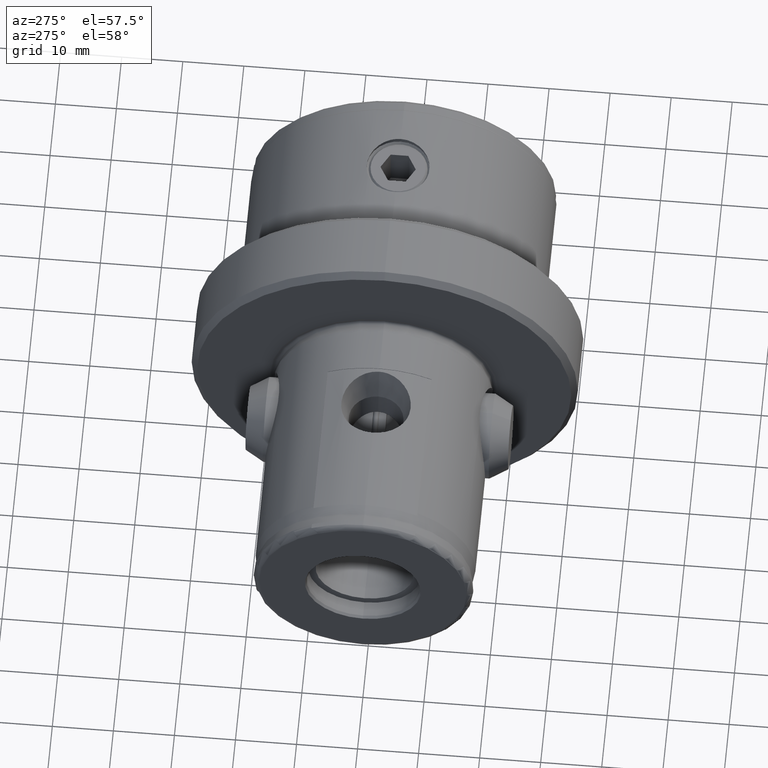
[diagram: clean part render]
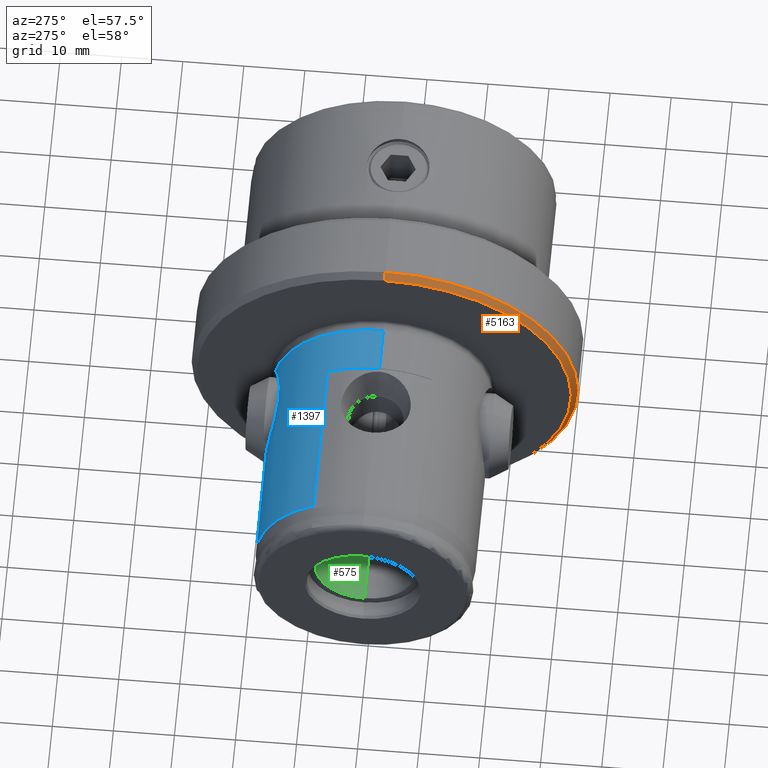
[diagram: same view with three faces highlighted in distinct colors, each labeled with its STEP entity id]
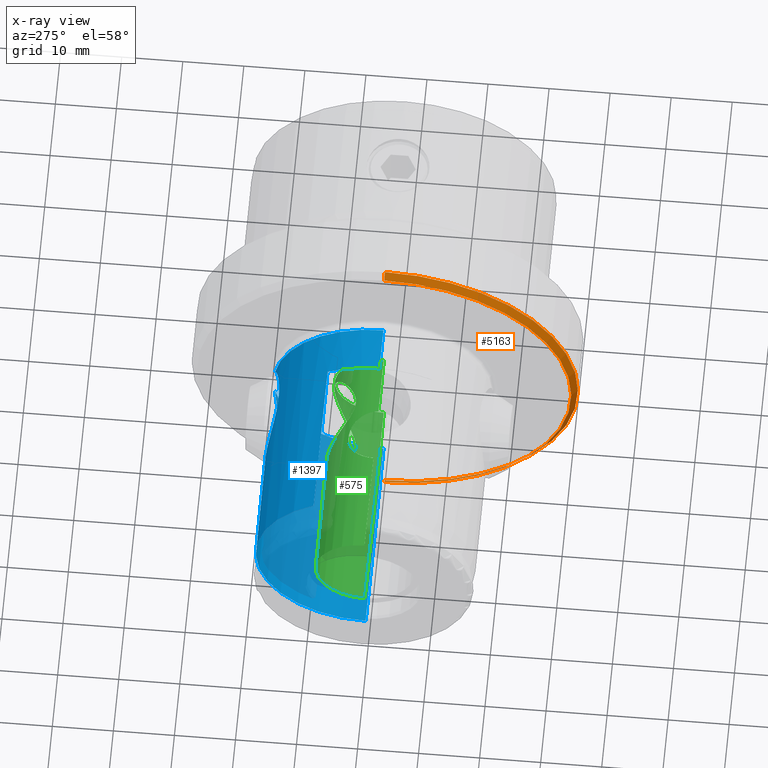
[diagram: x-ray of the same camera — body ghosted, the three highlighted faces saturated]
A machine part, auxiliary view with three faces highlighted in distinct colors.
The next image is the same camera in x-ray (body ghosted, the three faces saturated) — at least one of them is partly hidden behind the body in this view.
Their STEP definitions:

[orange] entity #5163 — the highlighted conical surface has half-angle 45 deg.
#317 = DIRECTION ( 'NONE',  ( 0.7071067811865475700, 0.0000000000000000000, -0.7071067811865474600 ) ) ;
#453 = ORIENTED_EDGE ( 'NONE', *, *, #3436, .F. ) ;
#734 = CONICAL_SURFACE ( 'NONE', #3690, 31.63500000000000500, 0.7853981633974482800 ) ;
#780 = LINE ( 'NONE', #2720, #3036 ) ;
#855 = FACE_OUTER_BOUND ( 'NONE', #3603, .T. ) ;
#1037 = VERTEX_POINT ( 'NONE', #4870 ) ;
#1152 = DIRECTION ( 'NONE',  ( -1.000000000000000000, -0.0000000000000000000, -0.0000000000000000000 ) ) ;
#1500 = AXIS2_PLACEMENT_3D ( 'NONE', #3557, #1152, #3956 ) ;
#1553 = EDGE_CURVE ( 'NONE', #4884, #1037, #3606, .T. ) ;
#1592 = CIRCLE ( 'NONE', #3165, 31.63500000000000500 ) ;
#1745 = DIRECTION ( 'NONE',  ( 0.0000000000000000000, 0.0000000000000000000, -1.000000000000000000 ) ) ;
#1942 = DIRECTION ( 'NONE',  ( -1.000000000000000000, -0.0000000000000000000, -0.0000000000000000000 ) ) ;
#2138 = EDGE_CURVE ( 'NONE', #4884, #2364, #780, .T. ) ;
#2179 = EDGE_CURVE ( 'NONE', #2364, #4627, #1592, .T. ) ;
#2263 = ORIENTED_EDGE ( 'NONE', *, *, #2179, .T. ) ;
#2364 = VERTEX_POINT ( 'NONE', #5006 ) ;
#2608 = CARTESIAN_POINT ( 'NONE',  ( 41.00000000000000000, 3.874170149102652900E-015, 31.63500000000000500 ) ) ;
#2691 = ORIENTED_EDGE ( 'NONE', *, *, #1553, .F. ) ;
#2720 = CARTESIAN_POINT ( 'NONE',  ( 41.00000000000000000, 0.0000000000000000000, -31.63500000000000500 ) ) ;
#2760 = LINE ( 'NONE', #2608, #3850 ) ;
#2947 = CARTESIAN_POINT ( 'NONE',  ( 41.00000000000000000, 0.0000000000000000000, 0.0000000000000000000 ) ) ;
#3036 = VECTOR ( 'NONE', #317, 1000.000000000000000 ) ;
#3152 = CARTESIAN_POINT ( 'NONE',  ( 40.00000000000000000, 0.0000000000000000000, -30.63500000000000200 ) ) ;
#3165 = AXIS2_PLACEMENT_3D ( 'NONE', #4357, #1942, #4795 ) ;
#3417 = DIRECTION ( 'NONE',  ( 0.7071067811865475700, 8.659560562354931600E-017, 0.7071067811865474600 ) ) ;
#3436 = EDGE_CURVE ( 'NONE', #1037, #4627, #2760, .T. ) ;
#3557 = CARTESIAN_POINT ( 'NONE',  ( 40.00000000000000000, 0.0000000000000000000, 0.0000000000000000000 ) ) ;
#3603 = EDGE_LOOP ( 'NONE', ( #453, #2691, #3926, #2263 ) ) ;
#3606 = CIRCLE ( 'NONE', #1500, 30.63500000000000200 ) ;
#3690 = AXIS2_PLACEMENT_3D ( 'NONE', #2947, #4143, #1745 ) ;
#3850 = VECTOR ( 'NONE', #3417, 1000.000000000000000 ) ;
#3926 = ORIENTED_EDGE ( 'NONE', *, *, #2138, .T. ) ;
#3956 = DIRECTION ( 'NONE',  ( 0.0000000000000000000, 0.0000000000000000000, 1.000000000000000000 ) ) ;
#4112 = CARTESIAN_POINT ( 'NONE',  ( 41.00000000000000000, 0.0000000000000000000, 31.63500000000000500 ) ) ;
#4143 = DIRECTION ( 'NONE',  ( 1.000000000000000000, 0.0000000000000000000, 0.0000000000000000000 ) ) ;
#4357 = CARTESIAN_POINT ( 'NONE',  ( 41.00000000000000000, 0.0000000000000000000, 0.0000000000000000000 ) ) ;
#4627 = VERTEX_POINT ( 'NONE', #4112 ) ;
#4795 = DIRECTION ( 'NONE',  ( 0.0000000000000000000, 0.0000000000000000000, 1.000000000000000000 ) ) ;
#4870 = CARTESIAN_POINT ( 'NONE',  ( 40.00000000000000000, 3.812937809145284600E-015, 30.63500000000000200 ) ) ;
#4884 = VERTEX_POINT ( 'NONE', #3152 ) ;
#5006 = CARTESIAN_POINT ( 'NONE',  ( 41.00000000000000000, 3.874170149102652900E-015, -31.63500000000000500 ) ) ;
#5163 = ADVANCED_FACE ( 'NONE', ( #855 ), #734, .T. ) ;

[blue] entity #1397 — the highlighted cylindrical surface (partial cylindrical patch) has radius 18 mm, axis along (-1, -0, -0).
#107 = CARTESIAN_POINT ( 'NONE',  ( 37.99646474748055200, 17.63860882376996000, 3.606855129293381700 ) ) ;
#124 = CARTESIAN_POINT ( 'NONE',  ( 31.73670170766269300, 16.50563471118012500, 7.181082085637370000 ) ) ;
#138 = AXIS2_PLACEMENT_3D ( 'NONE', #4230, #2681, #3027 ) ;
#141 = CARTESIAN_POINT ( 'NONE',  ( 24.34541863625331000, 17.53321062079486100, 4.089163731635486500 ) ) ;
#247 = VERTEX_POINT ( 'NONE', #3738 ) ;
#255 = CARTESIAN_POINT ( 'NONE',  ( 23.55845802897322000, 17.78404422032052400, -2.787362493545952400 ) ) ;
#260 = ORIENTED_EDGE ( 'NONE', *, *, #3874, .T. ) ;
#271 = CARTESIAN_POINT ( 'NONE',  ( 29.11575502398848100, 16.57827458412401000, -7.011903959323706900 ) ) ;
#291 = CARTESIAN_POINT ( 'NONE',  ( 35.49434043996613000, 16.97779143842763700, -5.980604082472052800 ) ) ;
#293 = VECTOR ( 'NONE', #3391, 1000.000000000000000 ) ;
#426 = DIRECTION ( 'NONE',  ( -1.000000000000000000, -0.0000000000000000000, -0.0000000000000000000 ) ) ;
#450 = DIRECTION ( 'NONE',  ( -1.000000000000000000, -0.0000000000000000000, -0.0000000000000000000 ) ) ;
#467 = EDGE_CURVE ( 'NONE', #2981, #247, #4712, .T. ) ;
#509 = CARTESIAN_POINT ( 'NONE',  ( 37.18306621504534300, 17.39441197991005300, 4.640149856457091100 ) ) ;
#531 = CARTESIAN_POINT ( 'NONE',  ( 30.40898110822280400, 16.50078830626885900, 7.191943260475200700 ) ) ;
#554 = CARTESIAN_POINT ( 'NONE',  ( 23.86494661084117700, 17.68381765283066500, 3.364656110074328000 ) ) ;
#645 = VERTEX_POINT ( 'NONE', #1727 ) ;
#668 = CARTESIAN_POINT ( 'NONE',  ( 23.86842660269960000, 17.68269974206002400, -3.370540670704040400 ) ) ;
#686 = CARTESIAN_POINT ( 'NONE',  ( 30.43455029711807200, 16.50009753239773900, -7.193526586947546900 ) ) ;
#697 = CARTESIAN_POINT ( 'NONE',  ( 36.22501593775069800, 17.14163620460445300, -5.498251275227708000 ) ) ;
#706 = CARTESIAN_POINT ( 'NONE',  ( 31.00000000000000000, 0.0000000000000000000, 0.0000000000000000000 ) ) ;
#732 = VECTOR ( 'NONE', #426, 1000.000000000000000 ) ;
#747 = CARTESIAN_POINT ( 'NONE',  ( 31.00000000000000000, 8.500000000000001800, 15.86663165262242400 ) ) ;
#769 = EDGE_CURVE ( 'NONE', #4776, #2565, #4644, .T. ) ;
#870 = DIRECTION ( 'NONE',  ( -1.000000000000000000, -0.0000000000000000000, -0.0000000000000000000 ) ) ;
#922 = CARTESIAN_POINT ( 'NONE',  ( 36.21141091913104800, 17.13830921320812500, 5.508610082120564600 ) ) ;
#937 = CARTESIAN_POINT ( 'NONE',  ( 29.09134896299174100, 16.58051310533916100, 7.006623401730663200 ) ) ;
#957 = CARTESIAN_POINT ( 'NONE',  ( 23.55458967925925500, 17.78533201208745100, 2.779154847720370900 ) ) ;
#1048 = FACE_OUTER_BOUND ( 'NONE', #2708, .T. ) ;
#1058 = CARTESIAN_POINT ( 'NONE',  ( 22.93190200199919500, 17.99999999999998900, -0.4442097121161643900 ) ) ;
#1071 = CARTESIAN_POINT ( 'NONE',  ( 24.35650833749220100, 17.52982895310218200, -4.103990358311621700 ) ) ;
#1084 = CIRCLE ( 'NONE', #2671, 17.99999999999999600 ) ;
#1085 = CARTESIAN_POINT ( 'NONE',  ( 31.75936099716420500, 16.50645626538545600, -7.179204234457063000 ) ) ;
#1100 = CARTESIAN_POINT ( 'NONE',  ( 37.18956424906622300, 17.39628433779718700, -4.633026610527011300 ) ) ;
#1116 = DIRECTION ( 'NONE',  ( 0.0000000000000000000, 0.0000000000000000000, -1.000000000000000000 ) ) ;
#1320 = CARTESIAN_POINT ( 'NONE',  ( 35.09994271429703600, 16.89526614417736600, 6.211949303041297600 ) ) ;
#1339 = CARTESIAN_POINT ( 'NONE',  ( 27.82837615247086700, 16.73465567413484900, 6.631197576125881500 ) ) ;
#1360 = CARTESIAN_POINT ( 'NONE',  ( 23.16053221535248600, 17.91940058224394500, 1.755418095963167300 ) ) ;
#1364 = LINE ( 'NONE', #2579, #293 ) ;
#1397 = ADVANCED_FACE ( 'NONE', ( #1048 ), #3284, .T. ) ;
#1475 = CARTESIAN_POINT ( 'NONE',  ( 25.24655750495666600, 17.27678132775169600, -5.061293725643069200 ) ) ;
#1493 = CARTESIAN_POINT ( 'NONE',  ( 32.63231668030569900, 16.56034365531662500, -7.053898310445703100 ) ) ;
#1507 = CARTESIAN_POINT ( 'NONE',  ( 38.00119512299937000, 17.64009293534651600, -3.599777068804775200 ) ) ;
#1590 = ORIENTED_EDGE ( 'NONE', *, *, #4512, .F. ) ;
#1663 = AXIS2_PLACEMENT_3D ( 'NONE', #706, #3509, #1116 ) ;
#1727 = CARTESIAN_POINT ( 'NONE',  ( 31.00000000000000000, 0.0000000000000000000, 17.99999999999999600 ) ) ;
#1729 = CARTESIAN_POINT ( 'NONE',  ( 33.89734758831384200, 16.69476340113109500, 6.730705771259678700 ) ) ;
#1749 = CARTESIAN_POINT ( 'NONE',  ( 26.63762583643104200, 16.94773195362926200, 6.067828240129368400 ) ) ;
#1765 = CARTESIAN_POINT ( 'NONE',  ( 22.99013818440916200, 17.97931556761555100, 0.8908833420161134100 ) ) ;
#1797 = CARTESIAN_POINT ( 'NONE',  ( 38.41455850893560600, 0.0000000000000000000, 0.0000000000000000000 ) ) ;
#1805 = LINE ( 'NONE', #2006, #732 ) ;
#1857 = CARTESIAN_POINT ( 'NONE',  ( 22.97769097315834600, 17.98358038333631000, -0.8840669560141553000 ) ) ;
#1874 = CARTESIAN_POINT ( 'NONE',  ( 26.28859359313112900, 17.02274508933090800, -5.856424216264334100 ) ) ;
#1886 = CARTESIAN_POINT ( 'NONE',  ( 33.28246580513797400, 16.62165037414337100, -6.908340353321326800 ) ) ;
#1900 = CARTESIAN_POINT ( 'NONE',  ( 38.41455850893560600, 17.77522644697580400, -2.835722969320480000 ) ) ;
#2006 = CARTESIAN_POINT ( 'NONE',  ( 0.0000000000000000000, 8.500000000000001800, 15.86663165262242400 ) ) ;
#2112 = CARTESIAN_POINT ( 'NONE',  ( 33.04300684568005400, 16.59669515726684400, 6.967933976370146000 ) ) ;
#2129 = CARTESIAN_POINT ( 'NONE',  ( 25.56355220360657300, 17.19411628802263800, 5.332386843050134200 ) ) ;
#2150 = CARTESIAN_POINT ( 'NONE',  ( 22.93190200199919500, 17.99999999999999300, 0.2219730551926340800 ) ) ;
#2167 = ORIENTED_EDGE ( 'NONE', *, *, #2810, .F. ) ;
#2176 = CARTESIAN_POINT ( 'NONE',  ( 38.41455850893560600, 0.0000000000000000000, 0.0000000000000000000 ) ) ;
#2188 = DIRECTION ( 'NONE',  ( 0.0000000000000000000, 0.0000000000000000000, 1.000000000000000000 ) ) ;
#2228 = ORIENTED_EDGE ( 'NONE', *, *, #3469, .T. ) ;
#2244 = CARTESIAN_POINT ( 'NONE',  ( 23.17186351799894700, 17.91553109237514000, -1.754680315417129300 ) ) ;
#2260 = CARTESIAN_POINT ( 'NONE',  ( 27.44232305104138100, 16.79707083821646000, -6.473190740486644200 ) ) ;
#2276 = CARTESIAN_POINT ( 'NONE',  ( 34.32638708030926700, 16.75911846020310500, -6.570429767877737200 ) ) ;
#2496 = CARTESIAN_POINT ( 'NONE',  ( 38.22325769522573300, 17.71178676538877300, 3.233383360738678400 ) ) ;
#2517 = CARTESIAN_POINT ( 'NONE',  ( 32.39199808531108700, 16.54278849941125200, 7.094866309426890900 ) ) ;
#2526 = ORIENTED_EDGE ( 'NONE', *, *, #769, .T. ) ;
#2539 = VECTOR ( 'NONE', #870, 1000.000000000000000 ) ;
#2541 = CARTESIAN_POINT ( 'NONE',  ( 24.62010505910683000, 17.45106249884142000, 4.423131486813447900 ) ) ;
#2565 = VERTEX_POINT ( 'NONE', #4747 ) ;
#2575 = DIRECTION ( 'NONE',  ( 0.0000000000000000000, 0.0000000000000000000, 1.000000000000000000 ) ) ;
#2579 = CARTESIAN_POINT ( 'NONE',  ( 0.0000000000000000000, 0.0000000000000000000, 17.99999999999999600 ) ) ;
#2613 = VERTEX_POINT ( 'NONE', #747 ) ;
#2659 = CARTESIAN_POINT ( 'NONE',  ( 23.38401876159309400, 17.84265000916357000, -2.383581161034348900 ) ) ;
#2671 = AXIS2_PLACEMENT_3D ( 'NONE', #2176, #5026, #2575 ) ;
#2676 = CARTESIAN_POINT ( 'NONE',  ( 28.68931508895390800, 16.62172541123075200, -6.909358408355208400 ) ) ;
#2681 = DIRECTION ( 'NONE',  ( -1.000000000000000000, -0.0000000000000000000, -0.0000000000000000000 ) ) ;
#2689 = CARTESIAN_POINT ( 'NONE',  ( 35.11323967572234700, 16.90058372384155700, -6.195425498821697000 ) ) ;
#2708 = EDGE_LOOP ( 'NONE', ( #2738, #3161, #2167, #1590, #260, #4780, #2526, #3497, #2228 ) ) ;
#2730 = VERTEX_POINT ( 'NONE', #4421 ) ;
#2738 = ORIENTED_EDGE ( 'NONE', *, *, #3694, .T. ) ;
#2810 = EDGE_CURVE ( 'NONE', #5131, #247, #4943, .T. ) ;
#2850 = CARTESIAN_POINT ( 'NONE',  ( 5.000000000000000000, 0.0000000000000000000, 0.0000000000000000000 ) ) ;
#2915 = CARTESIAN_POINT ( 'NONE',  ( 37.47707335714002100, 17.48007102607759600, 4.310109289213925400 ) ) ;
#2928 = CARTESIAN_POINT ( 'NONE',  ( 0.0000000000000000000, 2.204364238465235000E-015, -17.99999999999999600 ) ) ;
#2937 = CARTESIAN_POINT ( 'NONE',  ( 31.29644119268686700, 16.49445989731545500, 7.206445398811125000 ) ) ;
#2952 = CARTESIAN_POINT ( 'NONE',  ( 23.97929142787597500, 17.64730792314463400, 3.550522037677807500 ) ) ;
#2981 = VERTEX_POINT ( 'NONE', #3736 ) ;
#3022 = CIRCLE ( 'NONE', #1663, 17.99999999999999600 ) ;
#3027 = DIRECTION ( 'NONE',  ( 0.0000000000000000000, 0.0000000000000000000, 1.000000000000000000 ) ) ;
#3061 = CARTESIAN_POINT ( 'NONE',  ( 23.65540555508770400, 17.75190002092530900, -2.984704378626416700 ) ) ;
#3073 = CARTESIAN_POINT ( 'NONE',  ( 29.98658153610719900, 16.51738820525706300, -7.154150697198582000 ) ) ;
#3090 = CARTESIAN_POINT ( 'NONE',  ( 35.68202834501068600, 17.01826837074836600, -5.864738389333546700 ) ) ;
#3161 = ORIENTED_EDGE ( 'NONE', *, *, #467, .T. ) ;
#3234 = AXIS2_PLACEMENT_3D ( 'NONE', #2850, #450, #3254 ) ;
#3254 = DIRECTION ( 'NONE',  ( 0.0000000000000000000, 0.0000000000000000000, 1.000000000000000000 ) ) ;
#3284 = CYLINDRICAL_SURFACE ( 'NONE', #138, 17.99999999999999600 ) ;
#3311 = CARTESIAN_POINT ( 'NONE',  ( 36.55129623075387000, 17.22388653117948800, 5.237775441756848900 ) ) ;
#3331 = CARTESIAN_POINT ( 'NONE',  ( 29.96136775513525000, 16.51864850772420500, 7.151254282170668800 ) ) ;
#3349 = CARTESIAN_POINT ( 'NONE',  ( 23.65265180328631800, 17.75280752788188500, 2.979285551202866900 ) ) ;
#3391 = DIRECTION ( 'NONE',  ( -1.000000000000000000, -0.0000000000000000000, -0.0000000000000000000 ) ) ;
#3467 = CARTESIAN_POINT ( 'NONE',  ( 23.98500906537170600, 17.64549065747029400, -3.559644568445278000 ) ) ;
#3469 = EDGE_CURVE ( 'NONE', #2730, #4219, #3514, .T. ) ;
#3483 = CARTESIAN_POINT ( 'NONE',  ( 31.31967915464217700, 16.49483146206961200, -7.205593547632094700 ) ) ;
#3497 = ORIENTED_EDGE ( 'NONE', *, *, #3667, .T. ) ;
#3500 = CARTESIAN_POINT ( 'NONE',  ( 36.56274029073384900, 17.22686039147078000, -5.227898754577625900 ) ) ;
#3509 = DIRECTION ( 'NONE',  ( 1.000000000000000000, 0.0000000000000000000, 0.0000000000000000000 ) ) ;
#3514 = B_SPLINE_CURVE_WITH_KNOTS ( 'NONE', 3,
 ( #3860, #1058, #1857, #4683, #2244, #5108, #2659, #255, #3061, #668, #3467, #1071, #3877, #1475, #4276, #1874, #4701, #2260, #5119, #2676, #271, #3073, #686, #3483, #1085, #3891, #1493, #4292, #1886, #4723, #2276, #5132, #2689, #291, #3090, #697, #3500, #1100, #3904, #1507, #4307, #1900 ),
 .UNSPECIFIED., .F., .F.,
 ( 4, 2, 2, 2, 2, 2, 2, 2, 2, 2, 2, 2, 2, 2, 2, 2, 2, 2, 2, 2, 4 ),
 ( 0.04231837611106453700, 0.04364345451560890800, 0.04430599371788109000, 0.04496853292015327200, 0.04563107212242545300, 0.04629361132469764200, 0.04761868972924200600, 0.04894376813378637600, 0.05026884653833074000, 0.05159392494287511100, 0.05291900334741947400, 0.05424408175196383800, 0.05556916015650819500, 0.05623169935878038300, 0.05689423856105257900, 0.05821931696559695700, 0.05888185616786913900, 0.05954439537014132700, 0.06086947377468571900, 0.06219455217923010300, 0.06351963058377449500 ),
 .UNSPECIFIED. ) ;
#3667 = EDGE_CURVE ( 'NONE', #2565, #2730, #4065, .T. ) ;
#3694 = EDGE_CURVE ( 'NONE', #4219, #2981, #1084, .T. ) ;
#3721 = CARTESIAN_POINT ( 'NONE',  ( 35.48418382912816300, 16.97356370694042800, 5.997046173810051800 ) ) ;
#3727 = CARTESIAN_POINT ( 'NONE',  ( 38.41455850893560600, 17.77522644697580400, -2.835722969320480000 ) ) ;
#3734 = CARTESIAN_POINT ( 'NONE',  ( 5.000000000000000000, 8.500000000000001800, 15.86663165262242400 ) ) ;
#3736 = CARTESIAN_POINT ( 'NONE',  ( 38.41455850893560600, 2.204364238465235000E-015, -17.99999999999999600 ) ) ;
#3738 = CARTESIAN_POINT ( 'NONE',  ( 5.000000000000000000, 2.204364238465235000E-015, -17.99999999999999600 ) ) ;
#3745 = CARTESIAN_POINT ( 'NONE',  ( 28.66477119139607800, 16.62445352552378000, 6.902827449905713000 ) ) ;
#3761 = CARTESIAN_POINT ( 'NONE',  ( 23.29353052584658500, 17.87307550028492300, 2.172583244038402700 ) ) ;
#3860 = CARTESIAN_POINT ( 'NONE',  ( 22.93190200199920200, 17.99999999999999600, -3.871334892372115400E-025 ) ) ;
#3874 = EDGE_CURVE ( 'NONE', #2613, #645, #3022, .T. ) ;
#3877 = CARTESIAN_POINT ( 'NONE',  ( 24.63436073430891300, 17.44689145738176400, -4.439577198171324600 ) ) ;
#3891 = CARTESIAN_POINT ( 'NONE',  ( 32.41461366777974000, 16.54432081348344900, -7.091295141990646500 ) ) ;
#3904 = CARTESIAN_POINT ( 'NONE',  ( 37.48006713832752700, 17.48094520961730700, -4.306718970528768500 ) ) ;
#4065 = B_SPLINE_CURVE_WITH_KNOTS ( 'NONE', 3,
 ( #4945, #2496, #107, #2915, #509, #3311, #922, #3721, #1320, #4135, #1729, #4535, #2112, #4967, #2517, #124, #2937, #531, #3331, #937, #3745, #1339, #4149, #1749, #4560, #2129, #4985, #2541, #141, #2952, #554, #3349, #957, #3761, #1360, #4166, #1765, #4583, #2150, #5005 ),
 .UNSPECIFIED., .F., .F.,
 ( 4, 2, 2, 2, 2, 2, 2, 2, 2, 2, 2, 2, 2, 2, 2, 2, 2, 2, 2, 4 ),
 ( 0.02112970282967841000, 0.02245399490976504300, 0.02377828698985167500, 0.02510257906993831200, 0.02642687115002494500, 0.02775116323011157800, 0.02841330927015489600, 0.02907545531019821100, 0.03039974739028484400, 0.03172403947037148000, 0.03304833155045811000, 0.03437262363054474600, 0.03569691571063138300, 0.03702120779071801200, 0.03834549987080464200, 0.03900764591084796000, 0.03966979195089127800, 0.04099408403097791500, 0.04165623007102122600, 0.04231837611106453700 ),
 .UNSPECIFIED. ) ;
#4135 = CARTESIAN_POINT ( 'NONE',  ( 34.30770989249216300, 16.75615000173566600, 6.577976082768544500 ) ) ;
#4149 = CARTESIAN_POINT ( 'NONE',  ( 27.41661514601358400, 16.80145667017276200, 6.461827271297570600 ) ) ;
#4166 = CARTESIAN_POINT ( 'NONE',  ( 23.02472694820993100, 17.96706735049164300, 1.109546440009177200 ) ) ;
#4219 = VERTEX_POINT ( 'NONE', #3727 ) ;
#4230 = CARTESIAN_POINT ( 'NONE',  ( 0.0000000000000000000, 0.0000000000000000000, 0.0000000000000000000 ) ) ;
#4276 = CARTESIAN_POINT ( 'NONE',  ( 25.58281051922636000, 17.18925380789051300, -5.348000421195600000 ) ) ;
#4292 = CARTESIAN_POINT ( 'NONE',  ( 33.06626629754461500, 16.59899160917127900, -6.962466582681459600 ) ) ;
#4304 = EDGE_CURVE ( 'NONE', #4776, #645, #1364, .T. ) ;
#4307 = CARTESIAN_POINT ( 'NONE',  ( 38.22606379371786300, 17.71271733118926800, -3.227550274077396700 ) ) ;
#4421 = CARTESIAN_POINT ( 'NONE',  ( 22.93190200199920200, 17.99999999999999600, -3.871334892372115400E-025 ) ) ;
#4512 = EDGE_CURVE ( 'NONE', #2613, #5131, #1805, .T. ) ;
#4535 = CARTESIAN_POINT ( 'NONE',  ( 33.25972824885349200, 16.61916049909768500, 6.914324667310957300 ) ) ;
#4560 = CARTESIAN_POINT ( 'NONE',  ( 26.26695388476233700, 17.02754932183958700, 5.842477938537720100 ) ) ;
#4583 = CARTESIAN_POINT ( 'NONE',  ( 22.94356862908022200, 17.99583828762101600, 0.4463919071600912500 ) ) ;
#4620 = DIRECTION ( 'NONE',  ( -1.000000000000000000, -0.0000000000000000000, -0.0000000000000000000 ) ) ;
#4644 = CIRCLE ( 'NONE', #4774, 17.99999999999999600 ) ;
#4683 = CARTESIAN_POINT ( 'NONE',  ( 23.11450770583963900, 17.93555306454750200, -1.537407140434435200 ) ) ;
#4701 = CARTESIAN_POINT ( 'NONE',  ( 26.66053469898521300, 16.94301535979870400, -6.080955321691590100 ) ) ;
#4712 = LINE ( 'NONE', #2928, #2539 ) ;
#4723 = CARTESIAN_POINT ( 'NONE',  ( 33.91735542046166100, 16.69758163014083200, -6.723725016323570000 ) ) ;
#4747 = CARTESIAN_POINT ( 'NONE',  ( 38.41455850893566300, 17.77522644697582200, 2.835722969320359200 ) ) ;
#4774 = AXIS2_PLACEMENT_3D ( 'NONE', #1797, #4620, #2188 ) ;
#4776 = VERTEX_POINT ( 'NONE', #5078 ) ;
#4780 = ORIENTED_EDGE ( 'NONE', *, *, #4304, .F. ) ;
#4943 = CIRCLE ( 'NONE', #3234, 17.99999999999999600 ) ;
#4945 = CARTESIAN_POINT ( 'NONE',  ( 38.41455850893566300, 17.77522644697582200, 2.835722969320359200 ) ) ;
#4967 = CARTESIAN_POINT ( 'NONE',  ( 32.60957766427833300, 16.55856864973131700, 7.058059103920378200 ) ) ;
#4985 = CARTESIAN_POINT ( 'NONE',  ( 25.22811866797911400, 17.28170604738808100, 5.044433623290114400 ) ) ;
#5005 = CARTESIAN_POINT ( 'NONE',  ( 22.93190200199920200, 17.99999999999999600, -3.871334892372115400E-025 ) ) ;
#5026 = DIRECTION ( 'NONE',  ( -1.000000000000000000, -0.0000000000000000000, -0.0000000000000000000 ) ) ;
#5078 = CARTESIAN_POINT ( 'NONE',  ( 38.41455850893560600, 0.0000000000000000000, 17.99999999999999600 ) ) ;
#5108 = CARTESIAN_POINT ( 'NONE',  ( 23.30652457802580500, 17.86911317836021200, -2.177142978797158800 ) ) ;
#5119 = CARTESIAN_POINT ( 'NONE',  ( 27.85411953193403200, 16.73078757115319000, -6.640913830973035600 ) ) ;
#5131 = VERTEX_POINT ( 'NONE', #3734 ) ;
#5132 = CARTESIAN_POINT ( 'NONE',  ( 34.91913907800201900, 16.86368335530488200, -6.294905354049918200 ) ) ;

[green] entity #575 — the highlighted cylindrical surface (partial cylindrical patch) has radius 8 mm, axis along (-1, -0, -0).
#13 = CARTESIAN_POINT ( 'NONE',  ( 27.48251403914352800, 5.225842342489489300, -6.067100569784237500 ) ) ;
#17 = AXIS2_PLACEMENT_3D ( 'NONE', #3778, #1382, #4191 ) ;
#23 = CARTESIAN_POINT ( 'NONE',  ( 23.89654528496663500, 4.469307143233852000, 6.635536900519606500 ) ) ;
#31 = CARTESIAN_POINT ( 'NONE',  ( 24.27183329226399900, 7.763170223860410800, -1.946708591556181700 ) ) ;
#47 = CARTESIAN_POINT ( 'NONE',  ( 25.01472903792675200, 7.127611959860361800, 3.657263872402699300 ) ) ;
#57 = CARTESIAN_POINT ( 'NONE',  ( 29.77802741755636600, 4.055457364967495000, 6.896534306439681600 ) ) ;
#70 = EDGE_CURVE ( 'NONE', #3978, #4957, #1718, .T. ) ;
#106 = CARTESIAN_POINT ( 'NONE',  ( 21.75218630588040400, 3.575326788833689000, 7.158923600411578800 ) ) ;
#114 = CARTESIAN_POINT ( 'NONE',  ( 31.00000000000000000, 3.872983346207416100, -7.000000000000000000 ) ) ;
#202 = CARTESIAN_POINT ( 'NONE',  ( 31.98074286846648600, 3.988177731900007600, 6.935210667922923700 ) ) ;
#220 = CARTESIAN_POINT ( 'NONE',  ( 36.59568461713911300, 6.804890004860987500, 4.211636175206130000 ) ) ;
#239 = CARTESIAN_POINT ( 'NONE',  ( 37.79487699569075700, 7.821107749879473700, -1.699694806297963100 ) ) ;
#315 = CARTESIAN_POINT ( 'NONE',  ( 33.33639898924870700, 4.519184882075790300, -6.602452310275883600 ) ) ;
#334 = CARTESIAN_POINT ( 'NONE',  ( 20.00000000000000000, 2.429691588080716400E-024, 8.000000000000000000 ) ) ;
#348 = ORIENTED_EDGE ( 'NONE', *, *, #3221, .T. ) ;
#415 = CARTESIAN_POINT ( 'NONE',  ( 26.77525854670176400, 5.730294773337266900, -5.585463241233657800 ) ) ;
#432 = CARTESIAN_POINT ( 'NONE',  ( 24.05466032900178800, 7.952056936992423900, -0.9989638608996127500 ) ) ;
#440 = AXIS2_PLACEMENT_3D ( 'NONE', #816, #3213, #799 ) ;
#445 = EDGE_CURVE ( 'NONE', #1780, #3668, #4840, .T. ) ;
#448 = CARTESIAN_POINT ( 'NONE',  ( 25.81104634559652700, 6.472103622738505800, 4.718209453474957900 ) ) ;
#465 = CARTESIAN_POINT ( 'NONE',  ( 30.50233205902818400, 3.897572823664293500, 6.986533793702784000 ) ) ;
#526 = ORIENTED_EDGE ( 'NONE', *, *, #4726, .T. ) ;
#540 = EDGE_CURVE ( 'NONE', #1780, #4957, #2405, .T. ) ;
#551 = CARTESIAN_POINT ( 'NONE',  ( 3.000000000000001300, 9.797174393178825700E-016, -8.000000000000000000 ) ) ;
#575 = ADVANCED_FACE ( 'NONE', ( #3617, #2284 ), #1107, .F. ) ;
#612 = CARTESIAN_POINT ( 'NONE',  ( 32.91208899918225200, 4.297563524002335100, 6.750313967821280200 ) ) ;
#630 = CARTESIAN_POINT ( 'NONE',  ( 37.20765299464397200, 7.316088610786460200, 3.269170524971754000 ) ) ;
#644 = CARTESIAN_POINT ( 'NONE',  ( 37.58410927264451800, 7.638658865278716600, -2.388937611990054900 ) ) ;
#708 = CARTESIAN_POINT ( 'NONE',  ( 28.75628956257054700, 1.468402972155198300, 7.865408154721382800 ) ) ;
#730 = CARTESIAN_POINT ( 'NONE',  ( 32.68058799732991600, 4.216402275134134600, -6.799325192123256500 ) ) ;
#777 = VERTEX_POINT ( 'NONE', #551 ) ;
#799 = DIRECTION ( 'NONE',  ( 0.0000000000000000000, 0.0000000000000000000, 1.000000000000000000 ) ) ;
#804 = CARTESIAN_POINT ( 'NONE',  ( 30.75341472122459100, 3.872983346207417500, -7.000000000000002700 ) ) ;
#816 = CARTESIAN_POINT ( 'NONE',  ( 0.0000000000000000000, 0.0000000000000000000, 0.0000000000000000000 ) ) ;
#818 = CARTESIAN_POINT ( 'NONE',  ( 26.28152545996070400, 6.103671481951041100, -5.175140377973498600 ) ) ;
#834 = CARTESIAN_POINT ( 'NONE',  ( 23.99956464490028600, 8.000380935567907400, 0.2374143082818973300 ) ) ;
#854 = CARTESIAN_POINT ( 'NONE',  ( 26.43810958514765400, 5.983197743966739400, 5.313678933897081800 ) ) ;
#869 = CARTESIAN_POINT ( 'NONE',  ( 31.00000000000003200, 3.872983346207529800, 7.000000000000008000 ) ) ;
#900 = CARTESIAN_POINT ( 'NONE',  ( 20.14945777583613700, 1.188220059690629800, 7.916740125071215500 ) ) ;
#913 = EDGE_CURVE ( 'NONE', #3978, #3050, #4254, .T. ) ;
#964 = CARTESIAN_POINT ( 'NONE',  ( 26.51566801564634100, 4.033976322190243400, 6.909754555862320100 ) ) ;
#997 = EDGE_LOOP ( 'NONE', ( #2548, #348 ) ) ;
#1020 = CARTESIAN_POINT ( 'NONE',  ( 33.94127865411982700, 4.860453165376526400, 6.355857183588671700 ) ) ;
#1039 = CARTESIAN_POINT ( 'NONE',  ( 37.73937749234769300, 7.772813829932157000, 1.954234886555770200 ) ) ;
#1070 = CARTESIAN_POINT ( 'NONE',  ( 24.19666770055462700, 4.500035140832922700, 6.614354370086196900 ) ) ;
#1107 = CYLINDRICAL_SURFACE ( 'NONE', #440, 8.000000000000000000 ) ;
#1119 = CARTESIAN_POINT ( 'NONE',  ( 28.88079942607054600, 1.039559419402966000, 7.933523824993356400 ) ) ;
#1121 = CARTESIAN_POINT ( 'NONE',  ( 37.21333961301603200, 7.320924164744736700, -3.258114922168186700 ) ) ;
#1133 = CARTESIAN_POINT ( 'NONE',  ( 31.98474249579057700, 3.988991554300620000, -6.934747940482937500 ) ) ;
#1219 = CARTESIAN_POINT ( 'NONE',  ( 25.53525059416265500, 6.696459006977326200, -4.397427045972274400 ) ) ;
#1229 = ORIENTED_EDGE ( 'NONE', *, *, #445, .F. ) ;
#1238 = CARTESIAN_POINT ( 'NONE',  ( 24.06404719125110600, 7.944009374381276500, 0.9763053732221769200 ) ) ;
#1253 = CARTESIAN_POINT ( 'NONE',  ( 26.94395453693564600, 5.606767190425699700, 5.709096391447112700 ) ) ;
#1283 = CARTESIAN_POINT ( 'NONE',  ( 20.23920598036967200, 1.477341456959619900, 7.867333830361594100 ) ) ;
#1332 = CARTESIAN_POINT ( 'NONE',  ( 31.00000000000003200, 3.872983346207529800, 7.000000000000008000 ) ) ;
#1346 = CARTESIAN_POINT ( 'NONE',  ( 27.88420106937395500, 2.979963782583109100, 7.427588811030764400 ) ) ;
#1359 = VECTOR ( 'NONE', #4432, 1000.000000000000000 ) ;
#1373 = CARTESIAN_POINT ( 'NONE',  ( 27.25508783442824900, 3.569826698773357300, 7.161698676405052300 ) ) ;
#1382 = DIRECTION ( 'NONE',  ( -1.000000000000000000, -0.0000000000000000000, -0.0000000000000000000 ) ) ;
#1404 = CARTESIAN_POINT ( 'NONE',  ( 31.00000000000003200, 3.872983346207529800, 7.000000000000008000 ) ) ;
#1422 = CARTESIAN_POINT ( 'NONE',  ( 34.51608759526996600, 5.228986634347557500, 6.056674938847248100 ) ) ;
#1427 = EDGE_LOOP ( 'NONE', ( #4396, #1229, #4825, #4014, #1437, #526 ) ) ;
#1437 = ORIENTED_EDGE ( 'NONE', *, *, #913, .T. ) ;
#1445 = CARTESIAN_POINT ( 'NONE',  ( 37.93372130449692000, 7.942060636750627000, 0.9921945586677681800 ) ) ;
#1473 = CARTESIAN_POINT ( 'NONE',  ( 22.48561969521277200, 4.034553193597804300, 6.909409150732668300 ) ) ;
#1519 = CARTESIAN_POINT ( 'NONE',  ( 29.00000000000000400, 0.3039552728273295400, 8.000000000000000000 ) ) ;
#1523 = CARTESIAN_POINT ( 'NONE',  ( 36.46904912723344000, 6.699959181163979600, -4.392325937463688500 ) ) ;
#1540 = CARTESIAN_POINT ( 'NONE',  ( 31.24663314475430600, 3.872983346207417900, -6.999999999999998200 ) ) ;
#1541 = CARTESIAN_POINT ( 'NONE',  ( 20.46835379818647400, 2.020577234745507300, 7.745627606413296300 ) ) ;
#1559 = CIRCLE ( 'NONE', #17, 8.000000000000000000 ) ;
#1598 = CARTESIAN_POINT ( 'NONE',  ( 29.00000000000000000, -3.419524811915494600E-016, 8.000000000000000000 ) ) ;
#1612 = CARTESIAN_POINT ( 'NONE',  ( 30.01610137488169600, 3.988738115460893900, -6.934894096193116500 ) ) ;
#1628 = CARTESIAN_POINT ( 'NONE',  ( 25.02546966226504200, 7.119784853606724100, -3.654769069399911500 ) ) ;
#1640 = CARTESIAN_POINT ( 'NONE',  ( 0.0000000000000000000, 0.0000000000000000000, 8.000000000000000000 ) ) ;
#1642 = CARTESIAN_POINT ( 'NONE',  ( 24.20401643006872000, 7.822069272577858900, 1.695330024425967900 ) ) ;
#1659 = CARTESIAN_POINT ( 'NONE',  ( 27.85006981514655100, 4.981293055620331400, 6.266666362729792700 ) ) ;
#1708 = CARTESIAN_POINT ( 'NONE',  ( 39.00000000000000000, 0.0000000000000000000, 8.000000000000000000 ) ) ;
#1718 = B_SPLINE_CURVE_WITH_KNOTS ( 'NONE', 3,
 ( #334, #2181, #5012, #900, #1283, #1541, #4339, #2320, #5181, #2742, #106, #4275, #1473, #4092, #3876, #23, #1070, #4306, #1756, #4568, #2136, #964, #3767, #1373, #3753, #1346, #4156, #4591, #5146, #2294, #708, #3107, #1119, #3511, #1519, #3920 ),
 .UNSPECIFIED., .F., .F.,
 ( 4, 2, 2, 2, 2, 2, 2, 2, 2, 2, 2, 2, 2, 2, 2, 2, 2, 4 ),
 ( 0.01438585655599133400, 0.01528358065565201900, 0.01618130475531270500, 0.01707902885497339000, 0.01797675295463407500, 0.01887447705429476400, 0.01977220115395544900, 0.02066992525361613400, 0.02156764935327682200, 0.02246537345293750400, 0.02336309755259819200, 0.02426082165225887700, 0.02515854575191956200, 0.02605626985158024700, 0.02695399395124093600, 0.02740285600107127800, 0.02785171805090162100, 0.02874944215056231300 ),
 .UNSPECIFIED. ) ;
#1756 = CARTESIAN_POINT ( 'NONE',  ( 25.10243318942875800, 4.469483000408112100, 6.635419525211446500 ) ) ;
#1780 = VERTEX_POINT ( 'NONE', #1708 ) ;
#1785 = VECTOR ( 'NONE', #5081, 1000.000000000000000 ) ;
#1825 = CARTESIAN_POINT ( 'NONE',  ( 35.22816672748827900, 5.728443688976428300, 5.594857556674824700 ) ) ;
#1838 = CARTESIAN_POINT ( 'NONE',  ( 37.99967623635704700, 7.999716706867207700, 0.2553837469404187100 ) ) ;
#1913 = CARTESIAN_POINT ( 'NONE',  ( 35.56719605291186800, 5.985195037363307200, -5.322125969331660900 ) ) ;
#1998 = CARTESIAN_POINT ( 'NONE',  ( 29.09325734288529100, 4.295542750490961100, -6.751551159515619500 ) ) ;
#2014 = CARTESIAN_POINT ( 'NONE',  ( 24.69557899288613000, 7.398873424159360100, -3.051009069574202500 ) ) ;
#2031 = CARTESIAN_POINT ( 'NONE',  ( 24.41611980913625500, 7.638460984242292400, 2.389623310996396900 ) ) ;
#2047 = CARTESIAN_POINT ( 'NONE',  ( 28.66592305446397000, 4.517999929900968300, 6.603256513101747800 ) ) ;
#2088 = VECTOR ( 'NONE', #2238, 1000.000000000000000 ) ;
#2136 = CARTESIAN_POINT ( 'NONE',  ( 25.97544591273078800, 4.261330998162104100, 6.771907494521349800 ) ) ;
#2142 = CARTESIAN_POINT ( 'NONE',  ( 39.00000000000000000, 0.0000000000000000000, 0.0000000000000000000 ) ) ;
#2181 = CARTESIAN_POINT ( 'NONE',  ( 20.00000000000000400, 0.3038662765850934600, 7.999999999999998200 ) ) ;
#2189 = B_SPLINE_CURVE_WITH_KNOTS ( 'NONE', 3,
 ( #1404, #3807, #2607, #202, #3007, #612, #3414, #1020, #3830, #1422, #4227, #1825, #4651, #2210, #5066, #2628, #220, #3023, #630, #3437, #1039, #3842, #1445, #4249, #1838, #4668, #2230, #5086, #2639, #239, #3044, #644, #3515, #1121, #3922, #1523, #4324, #1913, #4752, #2306, #5170, #2717, #315, #3126, #730, #3532, #1133, #3941, #1540, #4338 ),
 .UNSPECIFIED., .F., .F.,
 ( 4, 2, 2, 2, 2, 2, 2, 2, 2, 2, 2, 2, 2, 2, 2, 2, 2, 2, 2, 2, 2, 2, 2, 2, 4 ),
 ( 4.938633129352845200E-017, 0.0007410764118145988200, 0.001482152823629148200, 0.002964305647258228300, 0.003705382059072776300, 0.004446458470887324300, 0.005928611294516403700, 0.006669687706330943100, 0.007410764118145483200, 0.008892916941774560100, 0.01037506976540363700, 0.01111614617721817800, 0.01185722258903271600, 0.01259829900084725300, 0.01333937541266179200, 0.01408045182447633000, 0.01482152823629086900, 0.01630368105991994800, 0.01778583388354902700, 0.01926798670717810200, 0.02075013953080718000, 0.02149121594262172800, 0.02223229235443627600, 0.02297336876625082100, 0.02371444517806536500 ),
 .UNSPECIFIED. ) ;
#2210 = CARTESIAN_POINT ( 'NONE',  ( 36.02350202804206000, 6.342417771066956300, 4.879646777212260000 ) ) ;
#2230 = CARTESIAN_POINT ( 'NONE',  ( 37.98766378670691100, 7.989198065058692700, -0.4841121308791078700 ) ) ;
#2238 = DIRECTION ( 'NONE',  ( -1.000000000000000000, -0.0000000000000000000, -0.0000000000000000000 ) ) ;
#2284 = FACE_BOUND ( 'NONE', #997, .T. ) ;
#2294 = CARTESIAN_POINT ( 'NONE',  ( 28.70481031364444700, 1.609788040920766100, 7.837606072508623200 ) ) ;
#2306 = CARTESIAN_POINT ( 'NONE',  ( 34.52085072694406900, 5.228052780230490800, -6.065323672382843900 ) ) ;
#2320 = CARTESIAN_POINT ( 'NONE',  ( 20.93560259634438800, 2.762389903400848100, 7.512291944239913200 ) ) ;
#2379 = CARTESIAN_POINT ( 'NONE',  ( 31.00000000000000000, 3.872983346207416100, -7.000000000000000000 ) ) ;
#2397 = CARTESIAN_POINT ( 'NONE',  ( 27.85707477994499800, 4.977010234343023100, -6.269956170842669400 ) ) ;
#2405 = LINE ( 'NONE', #1640, #1359 ) ;
#2420 = CARTESIAN_POINT ( 'NONE',  ( 24.42139503826952000, 7.633913014964920600, -2.404133595501873000 ) ) ;
#2434 = CARTESIAN_POINT ( 'NONE',  ( 24.78435316828818100, 7.322888826826122100, 3.253468837334273300 ) ) ;
#2436 = EDGE_CURVE ( 'NONE', #3668, #777, #2834, .T. ) ;
#2453 = CARTESIAN_POINT ( 'NONE',  ( 29.31751508531602800, 4.217140374111854100, 6.798871005101090300 ) ) ;
#2509 = DIRECTION ( 'NONE',  ( -1.000000000000000000, -0.0000000000000000000, -0.0000000000000000000 ) ) ;
#2533 = DIRECTION ( 'NONE',  ( 0.0000000000000000000, 0.0000000000000000000, 1.000000000000000000 ) ) ;
#2548 = ORIENTED_EDGE ( 'NONE', *, *, #4328, .T. ) ;
#2607 = CARTESIAN_POINT ( 'NONE',  ( 31.49764609907176900, 3.897609098806160200, 6.986512144310525600 ) ) ;
#2628 = CARTESIAN_POINT ( 'NONE',  ( 36.46003205259940200, 6.693643135794166800, 4.385932761008145800 ) ) ;
#2639 = CARTESIAN_POINT ( 'NONE',  ( 37.89657681984990500, 7.909623561254249100, -1.223333147197735300 ) ) ;
#2717 = CARTESIAN_POINT ( 'NONE',  ( 33.54334667312675600, 4.630533659732755300, -6.525250478903921600 ) ) ;
#2742 = CARTESIAN_POINT ( 'NONE',  ( 21.52679531925316400, 3.390066598916450200, 7.249573497032080200 ) ) ;
#2809 = CARTESIAN_POINT ( 'NONE',  ( 26.94886962702531400, 5.603198860898253000, -5.712612966352317300 ) ) ;
#2825 = CARTESIAN_POINT ( 'NONE',  ( 24.20794932454040800, 7.818651992122297200, -1.710837691664582900 ) ) ;
#2834 = LINE ( 'NONE', #4678, #1785 ) ;
#2844 = CARTESIAN_POINT ( 'NONE',  ( 25.52746682110644400, 6.702835456357098200, 4.387530983107531300 ) ) ;
#2868 = CARTESIAN_POINT ( 'NONE',  ( 30.01791474980997900, 3.988469878905457600, 6.935044079988341700 ) ) ;
#2969 = B_SPLINE_CURVE_WITH_KNOTS ( 'NONE', 3,
 ( #2379, #804, #4012, #1612, #4415, #1998, #4855, #2397, #13, #2809, #415, #3216, #818, #3629, #1219, #4028, #1628, #4434, #2014, #4868, #2420, #31, #2825, #432, #3237, #834, #3644, #1238, #4048, #1642, #4453, #2031, #4889, #2434, #47, #2844, #448, #3250, #854, #3662, #1253, #4066, #1659, #4466, #2047, #4904, #2453, #57, #2868, #465, #3264, #869 ),
 .UNSPECIFIED., .F., .F.,
 ( 4, 2, 2, 2, 2, 2, 2, 2, 2, 2, 2, 2, 2, 2, 2, 2, 2, 2, 2, 2, 2, 2, 2, 2, 2, 4 ),
 ( 0.02371444517806536500, 0.02445537776351820700, 0.02519631034897104600, 0.02667817551987673000, 0.02816004069078241100, 0.02890097327623525300, 0.02964190586168809900, 0.03112377103259379000, 0.03186470361804663600, 0.03260563620349948800, 0.03334656878895234100, 0.03408750137440518700, 0.03556936654531088500, 0.03631029913076373700, 0.03705123171621658300, 0.03779216430166943600, 0.03853309688712228100, 0.04001496205802797900, 0.04149682722893367800, 0.04223775981438652300, 0.04297869239983936900, 0.04446055757074505300, 0.04520149015619789900, 0.04594242274165075100, 0.04668335532710359000, 0.04742428791255644300 ),
 .UNSPECIFIED. ) ;
#2983 = VERTEX_POINT ( 'NONE', #1332 ) ;
#3007 = CARTESIAN_POINT ( 'NONE',  ( 32.21939060143660800, 4.054646151562717000, 6.897013289270021600 ) ) ;
#3023 = CARTESIAN_POINT ( 'NONE',  ( 36.98016515217925400, 7.123323790367663800, 3.665499581207126500 ) ) ;
#3044 = CARTESIAN_POINT ( 'NONE',  ( 37.73217415248278400, 7.766645554248963600, -1.932705101340257600 ) ) ;
#3050 = VERTEX_POINT ( 'NONE', #5114 ) ;
#3107 = CARTESIAN_POINT ( 'NONE',  ( 28.84411403889636500, 1.183588334745167200, 7.913278169181660700 ) ) ;
#3126 = CARTESIAN_POINT ( 'NONE',  ( 32.90538900262169600, 4.312166394369732800, -6.739482880393575600 ) ) ;
#3213 = DIRECTION ( 'NONE',  ( -1.000000000000000000, -0.0000000000000000000, -0.0000000000000000000 ) ) ;
#3216 = CARTESIAN_POINT ( 'NONE',  ( 26.44179999664594800, 5.980386702605176000, -5.316827314838425500 ) ) ;
#3221 = EDGE_CURVE ( 'NONE', #3299, #2983, #2969, .T. ) ;
#3225 = AXIS2_PLACEMENT_3D ( 'NONE', #2142, #2509, #2533 ) ;
#3237 = CARTESIAN_POINT ( 'NONE',  ( 24.00090422832444400, 7.999208800510261100, -0.5123487462078587500 ) ) ;
#3250 = CARTESIAN_POINT ( 'NONE',  ( 26.27584553510029500, 6.108056706286470600, 5.170014478738929500 ) ) ;
#3264 = CARTESIAN_POINT ( 'NONE',  ( 30.74853928286104900, 3.872983346207415200, 6.999999999999998200 ) ) ;
#3299 = VERTEX_POINT ( 'NONE', #114 ) ;
#3414 = CARTESIAN_POINT ( 'NONE',  ( 33.33618302869196300, 4.511018792922471700, 6.613199792375690200 ) ) ;
#3437 = CARTESIAN_POINT ( 'NONE',  ( 37.59008089059902600, 7.643256047235722900, 2.406920330758378400 ) ) ;
#3511 = CARTESIAN_POINT ( 'NONE',  ( 28.96936630641345200, 0.6025897533263291400, 7.982657568880968700 ) ) ;
#3515 = CARTESIAN_POINT ( 'NONE',  ( 37.49817919220207300, 7.564649243936250900, -2.613215009182048300 ) ) ;
#3532 = CARTESIAN_POINT ( 'NONE',  ( 32.22090044364514900, 4.055153514021363900, -6.896709446665013800 ) ) ;
#3564 = CARTESIAN_POINT ( 'NONE',  ( 20.00000000000000000, 2.429691588080716400E-024, 8.000000000000000000 ) ) ;
#3617 = FACE_OUTER_BOUND ( 'NONE', #1427, .T. ) ;
#3629 = CARTESIAN_POINT ( 'NONE',  ( 25.81916881442154500, 6.465618769444693800, -4.726870835284254100 ) ) ;
#3644 = CARTESIAN_POINT ( 'NONE',  ( 24.01259493686569300, 7.988971967116974300, 0.4866045937506612900 ) ) ;
#3662 = CARTESIAN_POINT ( 'NONE',  ( 26.77208157100740800, 5.732635112101781300, 5.583075651238133700 ) ) ;
#3668 = VERTEX_POINT ( 'NONE', #4038 ) ;
#3753 = CARTESIAN_POINT ( 'NONE',  ( 27.47656300916170500, 3.387192595048161600, 7.250943801692808500 ) ) ;
#3767 = CARTESIAN_POINT ( 'NONE',  ( 26.77387740547221300, 3.894053566602879300, 6.990703642075264000 ) ) ;
#3778 = CARTESIAN_POINT ( 'NONE',  ( 3.000000000000001300, 0.0000000000000000000, 0.0000000000000000000 ) ) ;
#3807 = CARTESIAN_POINT ( 'NONE',  ( 31.25150952951508300, 3.872983346207416100, 7.000000000000001800 ) ) ;
#3830 = CARTESIAN_POINT ( 'NONE',  ( 34.13793107031342800, 4.982573697057825200, 6.260956148259881000 ) ) ;
#3842 = CARTESIAN_POINT ( 'NONE',  ( 37.89387460141013300, 7.907266498770180600, 1.238569224581665700 ) ) ;
#3876 = CARTESIAN_POINT ( 'NONE',  ( 23.31227099659225400, 4.350650956824871700, 6.713932718652853500 ) ) ;
#3920 = CARTESIAN_POINT ( 'NONE',  ( 29.00000000000000000, -3.419524811915494600E-016, 8.000000000000000000 ) ) ;
#3922 = CARTESIAN_POINT ( 'NONE',  ( 36.98704210979404600, 7.129069216778432900, -3.654907970464081700 ) ) ;
#3941 = CARTESIAN_POINT ( 'NONE',  ( 31.49578123250101300, 3.897195769751123700, -6.986748009664288400 ) ) ;
#3978 = VERTEX_POINT ( 'NONE', #3564 ) ;
#4012 = CARTESIAN_POINT ( 'NONE',  ( 30.50655199385512600, 3.896853369577714800, -6.986939365355582700 ) ) ;
#4014 = ORIENTED_EDGE ( 'NONE', *, *, #70, .F. ) ;
#4028 = CARTESIAN_POINT ( 'NONE',  ( 25.14813011631007800, 7.017061381128082000, -3.847834655708963300 ) ) ;
#4038 = CARTESIAN_POINT ( 'NONE',  ( 39.00000000000000000, 9.797174393178825700E-016, -8.000000000000000000 ) ) ;
#4048 = CARTESIAN_POINT ( 'NONE',  ( 24.10246520295656200, 7.910458981541825800, 1.218010795547846300 ) ) ;
#4066 = CARTESIAN_POINT ( 'NONE',  ( 27.47539365466653300, 5.230696321363130800, 6.062862008288854900 ) ) ;
#4092 = CARTESIAN_POINT ( 'NONE',  ( 23.02418142182259700, 4.261139167944571100, 6.772019438513684300 ) ) ;
#4156 = CARTESIAN_POINT ( 'NONE',  ( 28.07083717746639800, 2.753689553268036800, 7.515388987606606900 ) ) ;
#4191 = DIRECTION ( 'NONE',  ( 0.0000000000000000000, 0.0000000000000000000, 1.000000000000000000 ) ) ;
#4227 = CARTESIAN_POINT ( 'NONE',  ( 34.69843340959558700, 5.353767644453449200, 5.946977934507337700 ) ) ;
#4241 = CARTESIAN_POINT ( 'NONE',  ( 0.0000000000000000000, 0.0000000000000000000, 8.000000000000000000 ) ) ;
#4249 = CARTESIAN_POINT ( 'NONE',  ( 37.98639055055731700, 7.988084185479393400, 0.5012865904527227200 ) ) ;
#4254 = LINE ( 'NONE', #4241, #2088 ) ;
#4275 = CARTESIAN_POINT ( 'NONE',  ( 22.23186783471452100, 3.897309100564184000, 6.988857598931408800 ) ) ;
#4306 = CARTESIAN_POINT ( 'NONE',  ( 24.80437404865701400, 4.499964798875891100, 6.614402226255025500 ) ) ;
#4324 = CARTESIAN_POINT ( 'NONE',  ( 36.18332884090524000, 6.467625354216545800, -4.724130263467357900 ) ) ;
#4328 = EDGE_CURVE ( 'NONE', #2983, #3299, #2189, .T. ) ;
#4338 = CARTESIAN_POINT ( 'NONE',  ( 31.00000000000000000, 3.872983346207416100, -7.000000000000000000 ) ) ;
#4339 = CARTESIAN_POINT ( 'NONE',  ( 20.60770144812946500, 2.277221731124192700, 7.673303683629275600 ) ) ;
#4396 = ORIENTED_EDGE ( 'NONE', *, *, #2436, .F. ) ;
#4415 = CARTESIAN_POINT ( 'NONE',  ( 29.78019303000144900, 4.054865476716297000, -6.896872378908236500 ) ) ;
#4432 = DIRECTION ( 'NONE',  ( -1.000000000000000000, -0.0000000000000000000, -0.0000000000000000000 ) ) ;
#4434 = CARTESIAN_POINT ( 'NONE',  ( 24.79955884668913100, 7.310389463004233900, -3.256820414374531400 ) ) ;
#4453 = CARTESIAN_POINT ( 'NONE',  ( 24.26770867588235300, 7.766746700706383100, 1.932364216009925000 ) ) ;
#4466 = CARTESIAN_POINT ( 'NONE',  ( 28.45650230898549900, 4.630570762695049000, 6.525251823769629300 ) ) ;
#4568 = CARTESIAN_POINT ( 'NONE',  ( 25.68783680630146200, 4.350660611936763900, 6.713927524648776800 ) ) ;
#4591 = CARTESIAN_POINT ( 'NONE',  ( 28.39402991638742400, 2.273810747189288300, 7.674220642956697700 ) ) ;
#4651 = CARTESIAN_POINT ( 'NONE',  ( 35.55855141161418900, 5.978557785983367600, 5.329700761963414000 ) ) ;
#4668 = CARTESIAN_POINT ( 'NONE',  ( 38.00031210447502200, 8.000273091361835400, -0.2373156378398684200 ) ) ;
#4678 = CARTESIAN_POINT ( 'NONE',  ( 0.0000000000000000000, 9.797174393178825700E-016, -8.000000000000000000 ) ) ;
#4726 = EDGE_CURVE ( 'NONE', #3050, #777, #1559, .T. ) ;
#4752 = CARTESIAN_POINT ( 'NONE',  ( 35.23608176211070700, 5.734155101385032300, -5.589289077951106000 ) ) ;
#4825 = ORIENTED_EDGE ( 'NONE', *, *, #540, .T. ) ;
#4840 = CIRCLE ( 'NONE', #3225, 8.000000000000000000 ) ;
#4855 = CARTESIAN_POINT ( 'NONE',  ( 28.65990889001585600, 4.513167217921821200, -6.611679281401893400 ) ) ;
#4868 = CARTESIAN_POINT ( 'NONE',  ( 24.50650095462511800, 7.560630500432983700, -2.624662021152095000 ) ) ;
#4889 = CARTESIAN_POINT ( 'NONE',  ( 24.50085358802247300, 7.565481669576086300, 2.610733071131222000 ) ) ;
#4904 = CARTESIAN_POINT ( 'NONE',  ( 29.09602210038190200, 4.311558885268356200, 6.739864978118575300 ) ) ;
#4957 = VERTEX_POINT ( 'NONE', #1598 ) ;
#5012 = CARTESIAN_POINT ( 'NONE',  ( 20.03063709051255300, 0.6032244505835373500, 7.982653780565835100 ) ) ;
#5066 = CARTESIAN_POINT ( 'NONE',  ( 36.17397533346739600, 6.462424403061169700, 4.719993161877290800 ) ) ;
#5081 = DIRECTION ( 'NONE',  ( -1.000000000000000000, -0.0000000000000000000, -0.0000000000000000000 ) ) ;
#5086 = CARTESIAN_POINT ( 'NONE',  ( 37.93571255215223200, 7.943799414182387300, -0.9786220645567982300 ) ) ;
#5114 = CARTESIAN_POINT ( 'NONE',  ( 3.000000000000001300, 0.0000000000000000000, 8.000000000000000000 ) ) ;
#5146 = CARTESIAN_POINT ( 'NONE',  ( 28.53275973382324400, 2.018474218548001400, 7.746206024055879000 ) ) ;
#5170 = CARTESIAN_POINT ( 'NONE',  ( 34.14489612991594200, 4.978281868758784900, -6.268943513910699000 ) ) ;
#5181 = CARTESIAN_POINT ( 'NONE',  ( 21.11991901977560800, 2.984551923795118800, 7.425719981801746500 ) ) ;